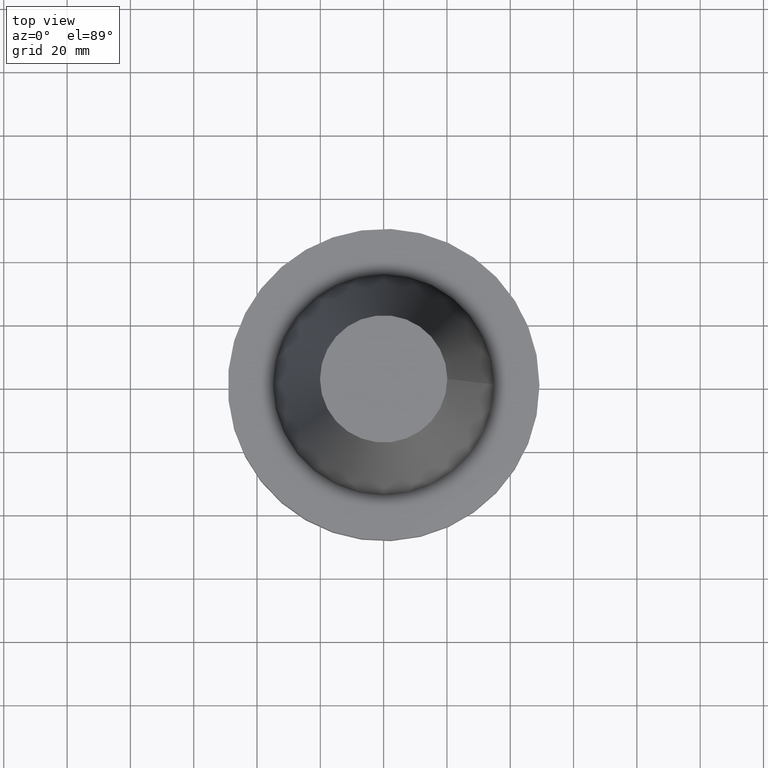
[diagram: clean part render]
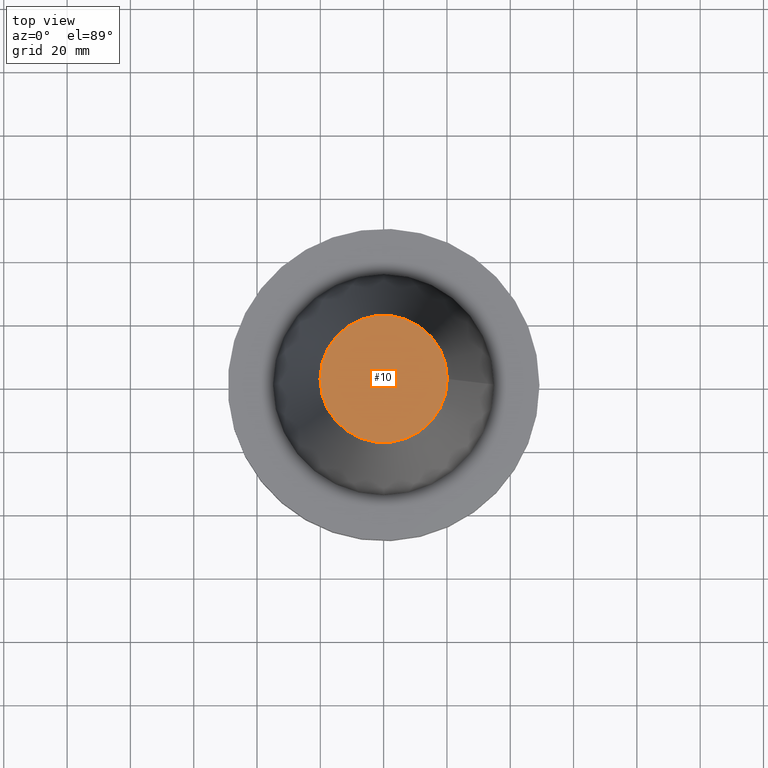
[diagram: same view with one face highlighted and labeled with its STEP entity id]
A machine part, top view. The second image highlights one B-rep face of the part: STEP entity #10.
In plain terms, the highlighted planar face has unit normal (0, 0, -1).
Its self-contained STEP definition (entity closure, byte-faithful):
#7 = EDGE_LOOP ( 'NONE', ( #346 ) ) ;
#10 = ADVANCED_FACE ( 'NONE', ( #255 ), #124, .F. ) ;
#34 = DIRECTION ( 'NONE',  ( -1.000000000000000000, 0.000000000000000000, -0.000000000000000000 ) ) ;
#84 = VERTEX_POINT ( 'NONE', #363 ) ;
#124 = PLANE ( 'NONE',  #296 ) ;
#136 = EDGE_CURVE ( 'NONE', #84, #84, #334, .T. ) ;
#174 = AXIS2_PLACEMENT_3D ( 'NONE', #279, #272, #186 ) ;
#186 = DIRECTION ( 'NONE',  ( 1.000000000000000000, 0.000000000000000000, 0.000000000000000000 ) ) ;
#255 = FACE_OUTER_BOUND ( 'NONE', #7, .T. ) ;
#272 = DIRECTION ( 'NONE',  ( -0.000000000000000000, -0.000000000000000000, 1.000000000000000000 ) ) ;
#279 = CARTESIAN_POINT ( 'NONE',  ( 0.000000000000000000, 0.000000000000000000, 101.5999999999999801 ) ) ;
#296 = AXIS2_PLACEMENT_3D ( 'NONE', #316, #310, #34 ) ;
#310 = DIRECTION ( 'NONE',  ( 0.000000000000000000, 0.000000000000000000, -1.000000000000000000 ) ) ;
#316 = CARTESIAN_POINT ( 'NONE',  ( 0.000000000000000000, 20.10819343178871321, 101.5999999999999943 ) ) ;
#334 = CIRCLE ( 'NONE', #174, 20.10819343178871321 ) ;
#346 = ORIENTED_EDGE ( 'NONE', *, *, #136, .T. ) ;
#363 = CARTESIAN_POINT ( 'NONE',  ( 20.10819343178871321, 0.000000000000000000, 101.5999999999999801 ) ) ;